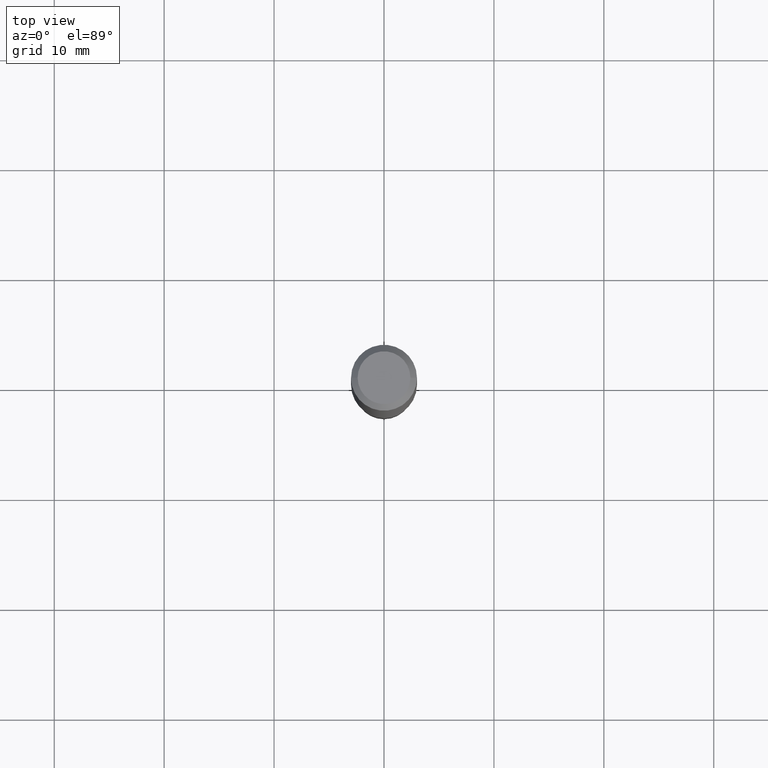
[diagram: clean part render]
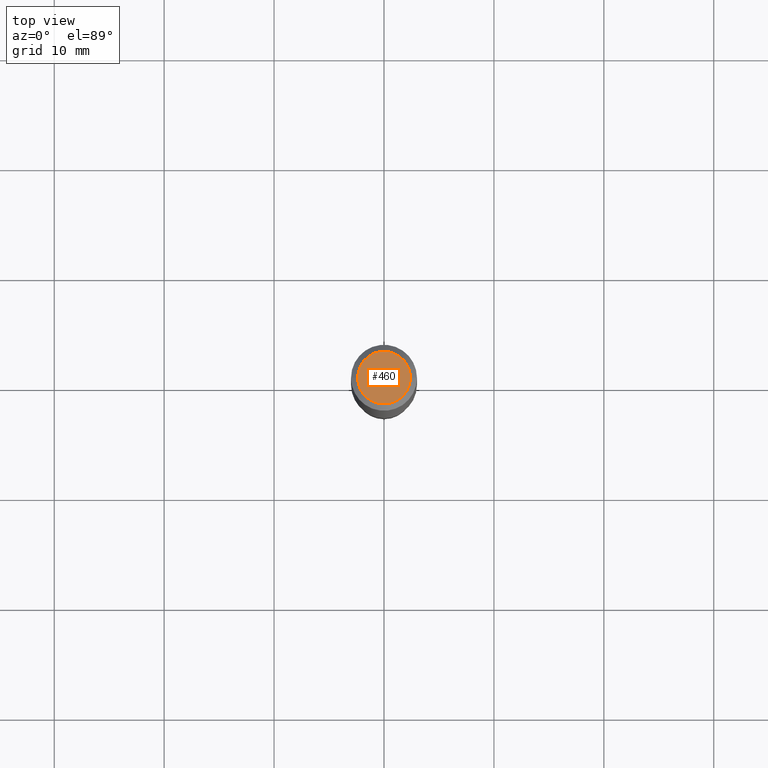
[diagram: same view with one face highlighted and labeled with its STEP entity id]
A machine part, top view. The second image highlights one B-rep face of the part: STEP entity #460.
In plain terms, the highlighted planar face has unit normal (0, -0, -1).
Its self-contained STEP definition (entity closure, byte-faithful):
#13 = ORIENTED_EDGE ( 'NONE', *, *, #426, .T. ) ;
#23 = DIRECTION ( 'NONE',  ( 1.000000000000000000, -6.982962677686267499E-15, 4.875432709231658792E-29 ) ) ;
#27 = DIRECTION ( 'NONE',  ( 2.438088387897960049E-29, -3.491481338843145188E-15, -1.000000000000000000 ) ) ;
#32 = AXIS2_PLACEMENT_3D ( 'NONE', #397, #27, #60 ) ;
#52 = CIRCLE ( 'NONE', #402, 0.09447999999999998066 ) ;
#60 = DIRECTION ( 'NONE',  ( -1.000000000000000000, 6.982962677686265922E-15, -4.876176775795935793E-29 ) ) ;
#63 = VERTEX_POINT ( 'NONE', #367 ) ;
#93 = CARTESIAN_POINT ( 'NONE',  ( 4.716267017698007905E-46, -6.733579360998555036E-32, -1.928573779297252010E-17 ) ) ;
#130 = VERTEX_POINT ( 'NONE', #137 ) ;
#137 = CARTESIAN_POINT ( 'NONE',  ( -0.09447999999999998066, 7.009847083995354710E-16, -1.928573779297727792E-17 ) ) ;
#165 = DIRECTION ( 'NONE',  ( 1.000000000000000000, -6.982962677686267499E-15, 4.875432709231658792E-29 ) ) ;
#203 = FACE_OUTER_BOUND ( 'NONE', #420, .T. ) ;
#204 = ORIENTED_EDGE ( 'NONE', *, *, #412, .T. ) ;
#242 = CARTESIAN_POINT ( 'NONE',  ( 4.716267017698007905E-46, -6.733579360998555036E-32, -1.928573779297252010E-17 ) ) ;
#317 = CIRCLE ( 'NONE', #437, 0.09447999999999998066 ) ;
#326 = PLANE ( 'NONE',  #32 ) ;
#367 = CARTESIAN_POINT ( 'NONE',  ( 0.09447999999999998066, -7.704367267948738690E-16, -1.928573779296752193E-17 ) ) ;
#397 = CARTESIAN_POINT ( 'NONE',  ( 2.358133508849003952E-46, -3.366789680499277518E-32, -9.642868896486260050E-18 ) ) ;
#402 = AXIS2_PLACEMENT_3D ( 'NONE', #242, #427, #23 ) ;
#412 = EDGE_CURVE ( 'NONE', #63, #130, #52, .T. ) ;
#420 = EDGE_LOOP ( 'NONE', ( #13, #204 ) ) ;
#426 = EDGE_CURVE ( 'NONE', #130, #63, #317, .T. ) ;
#427 = DIRECTION ( 'NONE',  ( -2.445468806185136597E-29, 3.491481338843145583E-15, 1.000000000000000000 ) ) ;
#437 = AXIS2_PLACEMENT_3D ( 'NONE', #93, #478, #165 ) ;
#460 = ADVANCED_FACE ( 'NONE', ( #203 ), #326, .F. ) ;
#478 = DIRECTION ( 'NONE',  ( -2.445468806185136597E-29, 3.491481338843145583E-15, 1.000000000000000000 ) ) ;